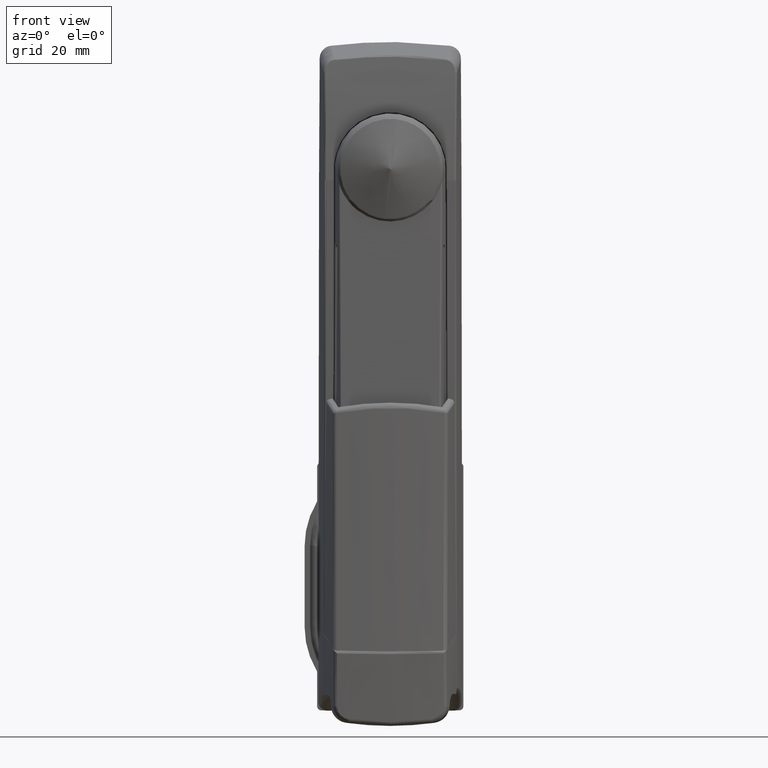
[diagram: clean part render]
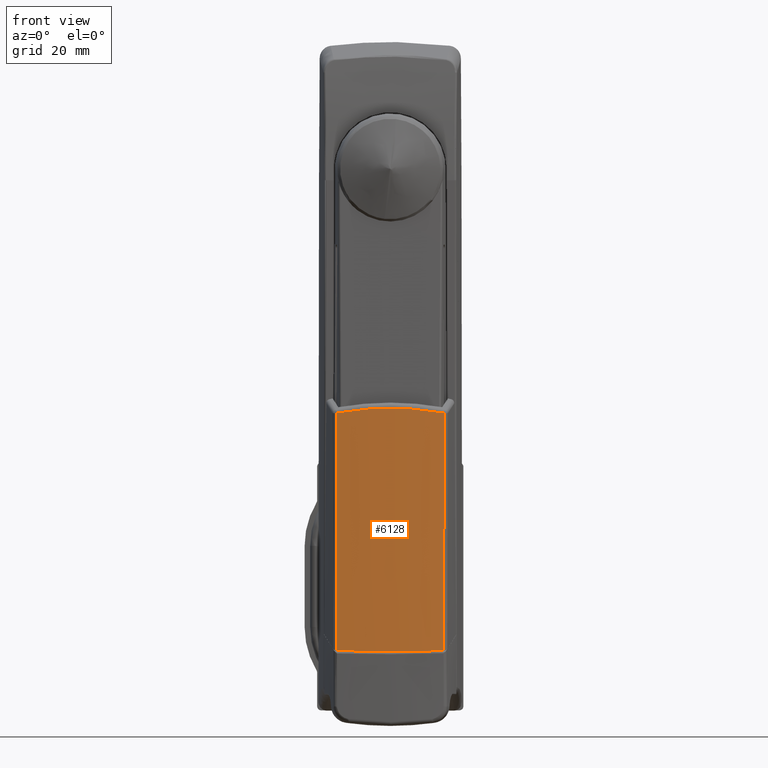
[diagram: same view with one face highlighted and labeled with its STEP entity id]
A machine part, front view. The second image highlights one B-rep face of the part: STEP entity #6128.
In plain terms, the highlighted face is a freeform B-spline surface patch.
Its self-contained STEP definition (entity closure, byte-faithful):
#5322=CARTESIAN_POINT('',(-20.753619017707450,12.906834747759881,-58.453501367796306));
#5323=VERTEX_POINT('',#5322);
#5402=CARTESIAN_POINT('',(-23.213498092633699,12.746435272905501,-115.296351779982800));
#5403=VERTEX_POINT('',#5402);
#5425=CARTESIAN_POINT('',(-20.753619017707450,12.906834747759881,-58.453501367796306));
#5426=CARTESIAN_POINT('',(-21.573417363525479,12.855415585062500,-77.401130868175798));
#5427=CARTESIAN_POINT('',(-22.393416163163192,12.801462137566990,-96.348744695955531));
#5428=CARTESIAN_POINT('',(-23.213498092633799,12.746435272904320,-115.296351779983600));
#5429=QUASI_UNIFORM_CURVE('',3,(#5425,#5426,#5427,#5428),.UNSPECIFIED.,.F.,.U.);
#5430=EDGE_CURVE('',#5323,#5403,#5429,.T.);
#5521=CARTESIAN_POINT('',(-20.753619009901300,-12.906834861584221,-58.453501390588599));
#5522=VERTEX_POINT('',#5521);
#5539=CARTESIAN_POINT('',(-20.753619009901300,-12.906834861584199,-58.453501390588599));
#5540=CARTESIAN_POINT('',(-20.827538567459339,-11.844052796460330,-58.256026469316687));
#5541=CARTESIAN_POINT('',(-20.892600477071671,-10.776927158434530,-58.083301789401503));
#5542=CARTESIAN_POINT('',(-20.976597077435851,-9.169745200599140,-57.861082119225998));
#5543=CARTESIAN_POINT('',(-21.002338180820200,-8.632725137792848,-57.793135006016222));
#5544=CARTESIAN_POINT('',(-21.049177366615780,-7.557937995541777,-57.669688708451247));
#5545=CARTESIAN_POINT('',(-21.070280870073042,-7.020107472692535,-57.614175077412597));
#5546=CARTESIAN_POINT('',(-21.164169153129830,-4.328778786336387,-57.367494955405888));
#5547=CARTESIAN_POINT('',(-21.202073831776840,-2.168769412870826,-57.268719454566401));
#5548=CARTESIAN_POINT('',(-21.202115526431971,2.165192778325495,-57.268610504972081));
#5549=CARTESIAN_POINT('',(-21.164251787718388,4.326657634541139,-57.367277590005429));
#5550=CARTESIAN_POINT('',(-21.070227768898679,7.021567651077875,-57.614314653540163));
#5551=CARTESIAN_POINT('',(-21.049088440797650,7.560120477207827,-57.669922789716821));
#5552=CARTESIAN_POINT('',(-21.002240528868722,8.634823325846838,-57.793392650932219));
#5553=CARTESIAN_POINT('',(-20.976525064200619,9.171182560445649,-57.861272426279740));
#5554=CARTESIAN_POINT('',(-20.892575577679931,10.777284426520870,-58.083368072235693));
#5555=CARTESIAN_POINT('',(-20.827538540597310,11.844053167093961,-58.256026538340770));
#5556=CARTESIAN_POINT('',(-20.753619017707450,12.906834747759881,-58.453501367796306));
#5557=B_SPLINE_CURVE_WITH_KNOTS('',3,(#5539,#5540,#5541,#5542,#5543,#5544,#5545,#5546,#5547,#5548,#5549,#5550,#5551,#5552,#5553,#5554,#5555,#5556),.UNSPECIFIED.,.F.,.U.,(4,2,2,2,2,2,2,2,4),(0.0,0.125000000000000,0.187500000000000,0.250000000000000,0.500000000000000,0.750000000000000,0.812500000000000,0.875000000000000,1.0),.UNSPECIFIED.);
#5558=EDGE_CURVE('',#5522,#5323,#5557,.T.);
#5669=CARTESIAN_POINT('',(-23.213497982794252,-12.746435470247640,-115.296351738092000));
#5670=VERTEX_POINT('',#5669);
#5700=CARTESIAN_POINT('',(-23.213497982794252,-12.746435470247640,-115.296351738091800));
#5701=CARTESIAN_POINT('',(-22.393416087565800,-12.801462306491009,-96.348744679688025));
#5702=CARTESIAN_POINT('',(-21.573417321459910,-12.855415725982679,-77.401130861761743));
#5703=CARTESIAN_POINT('',(-20.753619009901300,-12.906834861584199,-58.453501390588599));
#5704=QUASI_UNIFORM_CURVE('',3,(#5700,#5701,#5702,#5703),.UNSPECIFIED.,.F.,.U.);
#5705=EDGE_CURVE('',#5670,#5522,#5704,.T.);
#5867=CARTESIAN_POINT('',(-23.213498092633699,12.746435272905501,-115.296351779982800));
#5868=CARTESIAN_POINT('',(-23.378578398076119,10.626260005036480,-115.359310556341400));
#5869=CARTESIAN_POINT('',(-23.502403497116081,8.503062584840269,-115.406579545853010));
#5870=CARTESIAN_POINT('',(-23.667551161005100,4.251439168555984,-115.469634833757200));
#5871=CARTESIAN_POINT('',(-23.708813121453360,2.124710325097990,-115.485397981405300));
#5872=CARTESIAN_POINT('',(-23.708737093632159,-2.130581366313224,-115.485368942235400));
#5873=CARTESIAN_POINT('',(-23.667391151184940,-4.256670868773187,-115.469573727799300));
#5874=CARTESIAN_POINT('',(-23.502303980512782,-8.504508042936006,-115.406541561640400));
#5875=CARTESIAN_POINT('',(-23.378562871124451,-10.626458443542020,-115.359304634609200));
#5876=CARTESIAN_POINT('',(-23.213497982794259,-12.746435470247640,-115.296351738092100));
#5877=B_SPLINE_CURVE_WITH_KNOTS('',3,(#5867,#5868,#5869,#5870,#5871,#5872,#5873,#5874,#5875,#5876),.UNSPECIFIED.,.F.,.U.,(4,2,2,2,4),(0.0,0.250000000000000,0.500000000000000,0.750000000000000,1.0),.UNSPECIFIED.);
#5878=EDGE_CURVE('',#5403,#5670,#5877,.T.);
#6105=CARTESIAN_POINT('',(-20.656199366164149,13.179508129790641,-56.686497772078880));
#6106=CARTESIAN_POINT('',(-21.350647925157261,4.411302253911173,-56.686497772078880));
#6107=CARTESIAN_POINT('',(-21.350647816524589,-4.411302356659353,-56.686497772078880));
#6108=CARTESIAN_POINT('',(-20.656199360388509,-13.179508240412980,-56.686497772078880));
#6109=CARTESIAN_POINT('',(-21.513212826237421,13.119174977870021,-76.480182067048702));
#6110=CARTESIAN_POINT('',(-22.201338489880609,4.390946458220657,-76.480182067048702));
#6111=CARTESIAN_POINT('',(-22.201338370418810,-4.390946592099872,-76.480182067048702));
#6112=CARTESIAN_POINT('',(-21.513212785201581,-13.119175117680809,-76.480182067048702));
#6113=CARTESIAN_POINT('',(-22.370226286310679,13.058841825949420,-96.273866362018609));
#6114=CARTESIAN_POINT('',(-23.052029054603960,4.370590662530137,-96.273866362018609));
#6115=CARTESIAN_POINT('',(-23.052028924313081,-4.370590827540382,-96.273866362018609));
#6116=CARTESIAN_POINT('',(-22.370226210014710,-13.058841994948629,-96.273866362018609));
#6117=CARTESIAN_POINT('',(-23.227239746383908,12.998508674028839,-116.067550656988400));
#6118=CARTESIAN_POINT('',(-23.902719619327311,4.350234866839620,-116.067550656988400));
#6119=CARTESIAN_POINT('',(-23.902719478207359,-4.350235062980901,-116.067550656988400));
#6120=CARTESIAN_POINT('',(-23.227239634827821,-12.998508872216490,-116.067550656988400));
#6121=B_SPLINE_SURFACE_WITH_KNOTS('',3,3,((#6105,#6109,#6113,#6117),(#6106,#6110,#6114,#6118),(#6107,#6111,#6115,#6119),(#6108,#6112,#6116,#6120)),.UNSPECIFIED.,.F.,.F.,.U.,(4,4),(4,4),(0.0,26.386989933413268),(0.0,59.436961994706103),.UNSPECIFIED.);
#6122=ORIENTED_EDGE('',*,*,#5558,.T.);
#6123=ORIENTED_EDGE('',*,*,#5430,.T.);
#6124=ORIENTED_EDGE('',*,*,#5878,.T.);
#6125=ORIENTED_EDGE('',*,*,#5705,.T.);
#6126=EDGE_LOOP('',(#6122,#6123,#6124,#6125));
#6127=FACE_OUTER_BOUND('',#6126,.T.);
#6128=ADVANCED_FACE('',(#6127),#6121,.F.);